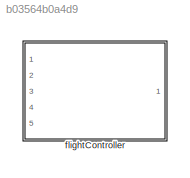
MODEL slx_b03564b0a4d9
KIND library
CONFIG AbsTol = auto
CONFIG EnableMultiTasking = off
CONFIG FixedStep = auto
CONFIG MaxStep = auto
CONFIG MinStep = auto
CONFIG RelTol = 1e-3
CONFIG SampleTimeConstraint = Unconstrained
CONFIG Solver = VariableStepAuto
CONFIG SolverName = VariableStepAuto
CONFIG StartTime = 0.0
CONFIG StopTime = 10.0
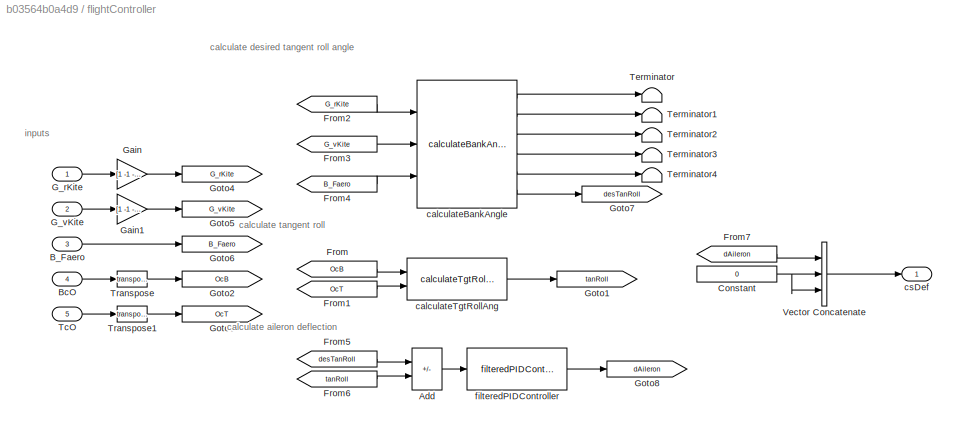
BLOCK [SubSystem] flightController
  Ports = [5, 1]
  RequestExecContextInheritance = off
BLOCK [Sum] flightController/Add
  IconShape = rectangular
  Inputs = +-
  Ports = [2, 1]
BLOCK [Inport] flightController/B_Faero
  Port = 3
BLOCK [Inport] flightController/BcO
  Port = 4
BLOCK [Constant] flightController/Constant
  Value = 0
BLOCK [From] flightController/From
  GotoTag = OcB
BLOCK [From] flightController/From1
  GotoTag = OcT
BLOCK [From] flightController/From2
  GotoTag = G_rKite
BLOCK [From] flightController/From3
  GotoTag = G_vKite
BLOCK [From] flightController/From4
  GotoTag = B_Faero
BLOCK [From] flightController/From5
  GotoTag = desTanRoll
BLOCK [From] flightController/From6
  GotoTag = tanRoll
BLOCK [From] flightController/From7
  GotoTag = dAileron
BLOCK [Inport] flightController/G_rKite
BLOCK [Inport] flightController/G_vKite
  Port = 2
BLOCK [Gain] flightController/Gain
  Gain = [1 -1 -1]
BLOCK [Gain] flightController/Gain1
  Gain = [1 -1 -1]
BLOCK [Goto] flightController/Goto1
  GotoTag = tanRoll
BLOCK [Goto] flightController/Goto2
  GotoTag = OcB
BLOCK [Goto] flightController/Goto3
  GotoTag = OcT
BLOCK [Goto] flightController/Goto4
  GotoTag = G_rKite
BLOCK [Goto] flightController/Goto5
  GotoTag = G_vKite
BLOCK [Goto] flightController/Goto6
  GotoTag = B_Faero
BLOCK [Goto] flightController/Goto7
  GotoTag = desTanRoll
BLOCK [Goto] flightController/Goto8
  GotoTag = dAileron
BLOCK [Inport] flightController/TcO
  Port = 5
BLOCK [Terminator] flightController/Terminator
BLOCK [Terminator] flightController/Terminator1
BLOCK [Terminator] flightController/Terminator2
BLOCK [Terminator] flightController/Terminator3
BLOCK [Terminator] flightController/Terminator4
BLOCK [Math] flightController/Transpose
  Operator = transpose
  Ports = [1, 1]
BLOCK [Math] flightController/Transpose1
  Operator = transpose
  Ports = [1, 1]
BLOCK [Concatenate] flightController/Vector Concatenate
  NumInputs = 3
  Ports = [3, 1]
BLOCK [Reference] flightController/calculateBankAngle  REF=calcBankAngle_cl/calculateBankAngle
  Ports = [3, 6]
  SourceBlock = calcBankAngle_cl/calculateBankAngle
BLOCK [Reference] flightController/calculateTgtRollAng  REF=calcTangentRollAngle_ul/calculateTgtRollAng
  Ports = [2, 1]
  SourceBlock = calcTangentRollAngle_ul/calculateTgtRollAng
  SourceType = SubSystem
BLOCK [Outport] flightController/csDef
BLOCK [Reference] flightController/filteredPIDController  REF=filteredPIDController_ul/filteredPIDController
  Ports = [1, 1]
  SourceBlock = filteredPIDController_ul/filteredPIDController
ANNOTATION flightController: calculate aileron deflection
ANNOTATION flightController: calculate desired tangent roll angle
ANNOTATION flightController: calculate tangent roll
ANNOTATION flightController: inputs
LINE flightController/Add:1 -> flightController/filteredPIDController:1
LINE flightController/B_Faero:1 -> flightController/Goto6:1
LINE flightController/BcO:1 -> flightController/Transpose:1
NET flightController/Constant:1 -> flightController/Vector Concatenate:2, flightController/Vector Concatenate:3
LINE flightController/From1:1 -> flightController/calculateTgtRollAng:2
LINE flightController/From2:1 -> flightController/calculateBankAngle:1
LINE flightController/From3:1 -> flightController/calculateBankAngle:2
LINE flightController/From4:1 -> flightController/calculateBankAngle:3
LINE flightController/From5:1 -> flightController/Add:1
LINE flightController/From6:1 -> flightController/Add:2
LINE flightController/From7:1 -> flightController/Vector Concatenate:1
LINE flightController/From:1 -> flightController/calculateTgtRollAng:1
LINE flightController/G_rKite:1 -> flightController/Gain:1
LINE flightController/G_vKite:1 -> flightController/Gain1:1
LINE flightController/Gain1:1 -> flightController/Goto5:1
LINE flightController/Gain:1 -> flightController/Goto4:1
LINE flightController/TcO:1 -> flightController/Transpose1:1
LINE flightController/Transpose1:1 -> flightController/Goto3:1
LINE flightController/Transpose:1 -> flightController/Goto2:1
LINE flightController/Vector Concatenate:1 -> flightController/csDef:1
LINE flightController/calculateBankAngle:1 -> flightController/Terminator:1
LINE flightController/calculateBankAngle:2 -> flightController/Terminator1:1
LINE flightController/calculateBankAngle:3 -> flightController/Terminator2:1
LINE flightController/calculateBankAngle:4 -> flightController/Terminator3:1
LINE flightController/calculateBankAngle:5 -> flightController/Terminator4:1
LINE flightController/calculateBankAngle:6 -> flightController/Goto7:1
LINE flightController/calculateTgtRollAng:1 -> flightController/Goto1:1
LINE flightController/filteredPIDController:1 -> flightController/Goto8:1
note: NET lines group one-source signal fan-out (src -> all destinations, sorted); 1:1 wires keep LINE
